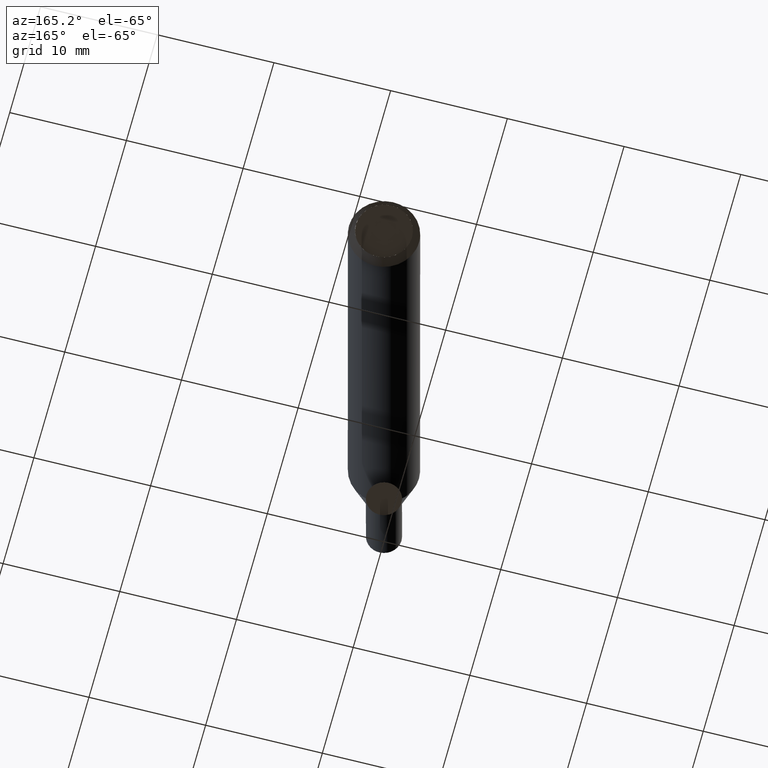
[diagram: clean part render]
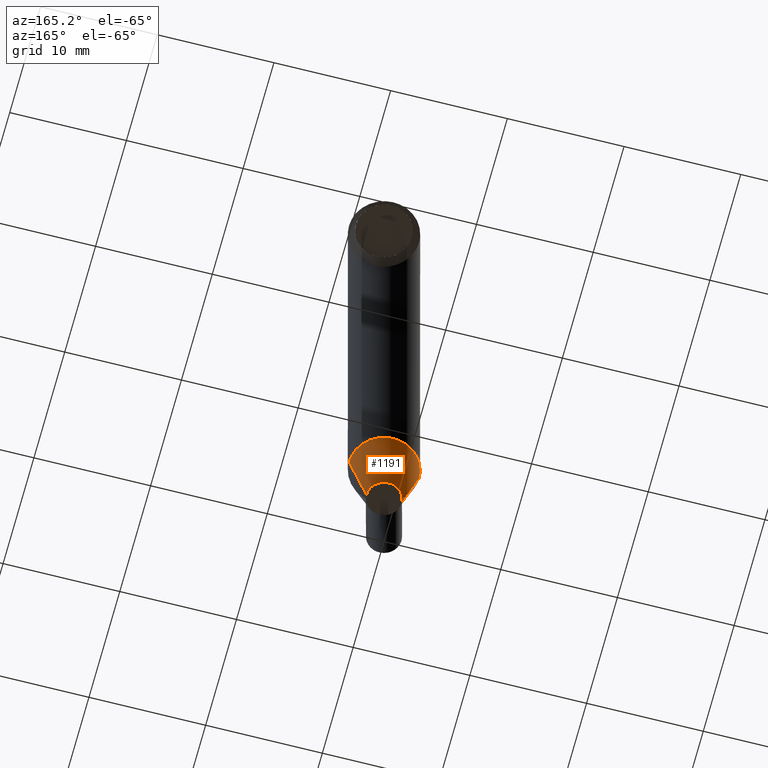
[diagram: same view with one face highlighted and labeled with its STEP entity id]
A machine part, auxiliary view. The second image highlights one B-rep face of the part: STEP entity #1191.
In plain terms, the highlighted face is a freeform B-spline surface patch.
Its self-contained STEP definition (entity closure, byte-faithful):
#950=CARTESIAN_POINT('',(1.5,0.0,-5.598076211353));
#951=CARTESIAN_POINT('',(1.5,1.5,-5.598076211353));
#952=CARTESIAN_POINT('',(0.0,1.5,-5.598076211353));
#953=CARTESIAN_POINT('',(-1.5,1.5,-5.598076211353));
#954=CARTESIAN_POINT('',(-1.5,0.0,-5.598076211353));
#974=CARTESIAN_POINT('',(3.0,0.0,-0.0));
#975=CARTESIAN_POINT('',(3.0,3.0,-0.0));
#976=CARTESIAN_POINT('',(0.0,3.0,-0.0));
#977=CARTESIAN_POINT('',(-3.0,3.0,-0.0));
#978=CARTESIAN_POINT('',(-3.0,0.0,-0.0));
#1172=(
BOUNDED_SURFACE()
B_SPLINE_SURFACE(1,2,(
(#950,#951,#952,#953,#954),
(#974,#975,#976,#977,#978)
), .UNSPECIFIED.,.F.,.F.,.F.)
B_SPLINE_SURFACE_WITH_KNOTS((2,2),(3,2,3),(
0.0,1.0),(
0.0,0.5,1.0), .UNSPECIFIED.)
GEOMETRIC_REPRESENTATION_ITEM()
RATIONAL_B_SPLINE_SURFACE(((1.0,0.707106781187,1.0,0.707106781187,1.0),
(1.0,0.707106781187,1.0,0.707106781187,1.0)
))
REPRESENTATION_ITEM('')
SURFACE()
);
#1173=(
BOUNDED_CURVE()
B_SPLINE_CURVE(2,(#974,#975,#976,#977,#978),.UNSPECIFIED.,.F.,.F.)
B_SPLINE_CURVE_WITH_KNOTS((3,2,3),
(0.0,0.5,1.0),.UNSPECIFIED.)
CURVE()
GEOMETRIC_REPRESENTATION_ITEM()
RATIONAL_B_SPLINE_CURVE((1.0,0.707106781187,1.0,0.707106781187,1.0))
REPRESENTATION_ITEM('')
);
#1174=(
BOUNDED_CURVE()
B_SPLINE_CURVE(1,(#978,#954),.UNSPECIFIED.,.F.,.F.)
B_SPLINE_CURVE_WITH_KNOTS((2,2),
(0.0,1.0),.UNSPECIFIED.)
CURVE()
GEOMETRIC_REPRESENTATION_ITEM()
RATIONAL_B_SPLINE_CURVE((1.0,1.0))
REPRESENTATION_ITEM('')
);
#1175=(
BOUNDED_CURVE()
B_SPLINE_CURVE(2,(#954,#953,#952,#951,#950),.UNSPECIFIED.,.F.,.F.)
B_SPLINE_CURVE_WITH_KNOTS((3,2,3),
(0.0,0.5,1.0),.UNSPECIFIED.)
CURVE()
GEOMETRIC_REPRESENTATION_ITEM()
RATIONAL_B_SPLINE_CURVE((1.0,0.707106781187,1.0,0.707106781187,1.0))
REPRESENTATION_ITEM('')
);
#1176=(
BOUNDED_CURVE()
B_SPLINE_CURVE(1,(#950,#974),.UNSPECIFIED.,.F.,.F.)
B_SPLINE_CURVE_WITH_KNOTS((2,2),
(0.0,1.0),.UNSPECIFIED.)
CURVE()
GEOMETRIC_REPRESENTATION_ITEM()
RATIONAL_B_SPLINE_CURVE((1.0,1.0))
REPRESENTATION_ITEM('')
);
#1177=VERTEX_POINT('',#950);
#1178=VERTEX_POINT('',#954);
#1179=VERTEX_POINT('',#974);
#1180=VERTEX_POINT('',#978);
#1181=EDGE_CURVE('',#1179,#1180,#1173,.T.);
#1182=EDGE_CURVE('',#1180,#1178,#1174,.T.);
#1183=EDGE_CURVE('',#1178,#1177,#1175,.T.);
#1184=EDGE_CURVE('',#1177,#1179,#1176,.T.);
#1185=ORIENTED_EDGE('',*,*,#1181,.T.);
#1186=ORIENTED_EDGE('',*,*,#1182,.T.);
#1187=ORIENTED_EDGE('',*,*,#1183,.T.);
#1188=ORIENTED_EDGE('',*,*,#1184,.T.);
#1189=EDGE_LOOP('',(#1185,#1186,#1187,#1188));
#1190=FACE_OUTER_BOUND('',#1189,.T.);
#1191=ADVANCED_FACE('',(#1190),#1172,.T.);